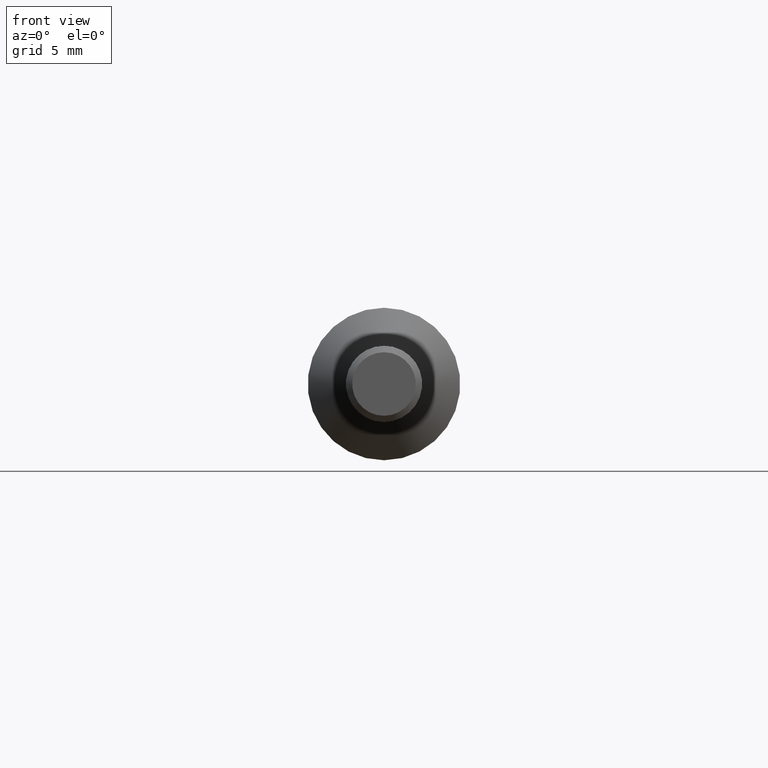
[diagram: clean part render]
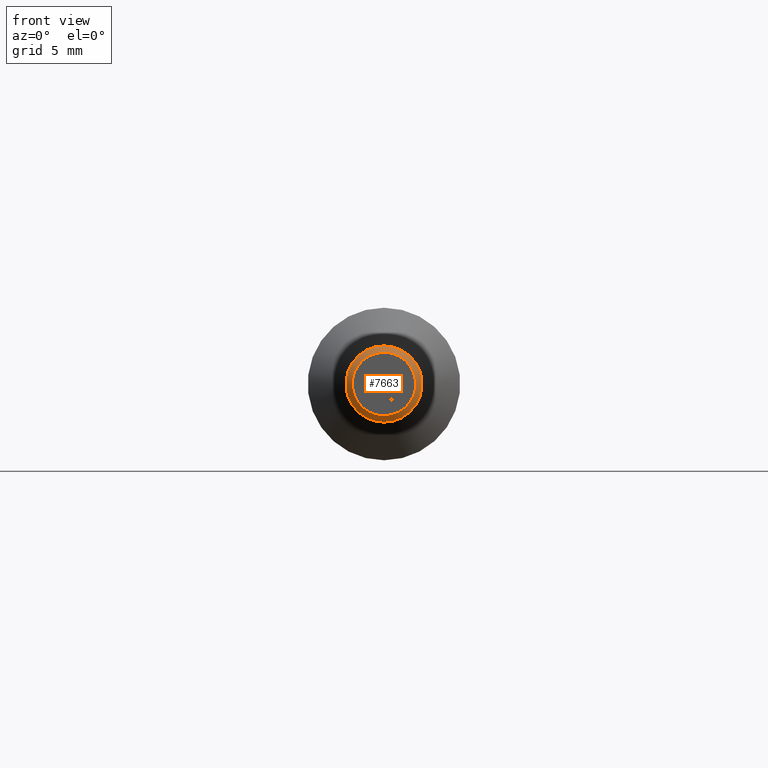
[diagram: same view with one face highlighted and labeled with its STEP entity id]
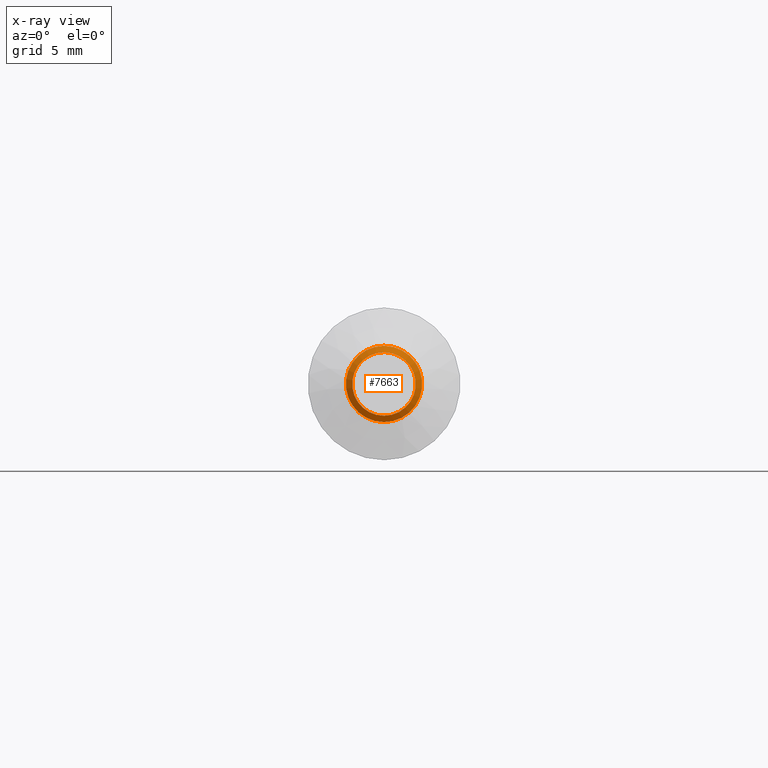
[diagram: x-ray of the same camera — body ghosted, the highlighted face saturated]
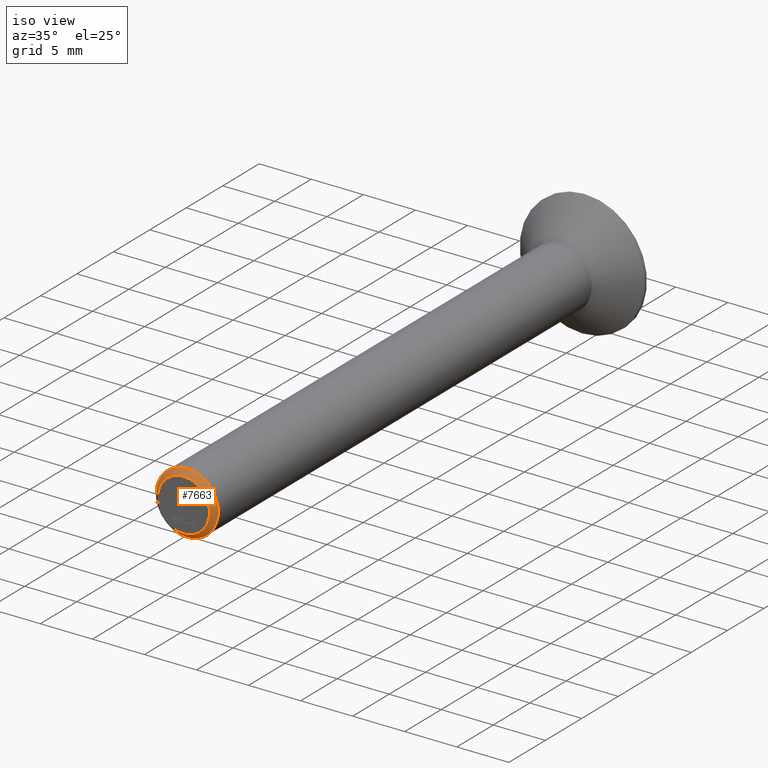
[diagram: same view with one face highlighted and labeled with its STEP entity id]
A machine part, front view. The second image highlights one B-rep face of the part: STEP entity #7663.
The next image is the same camera in x-ray: the body ghosted, the highlighted face saturated — about 0% of this face is hidden behind the body in this view.
A second angle (iso view) of the same face is appended — the face is thin or edge-on in the first view.
In plain terms, the highlighted conical surface has half-angle 45 deg.
Its self-contained STEP definition (entity closure, byte-faithful):
#876 = VERTEX_POINT ( 'NONE', #3048 ) ;
#1638 = DIRECTION ( 'NONE',  ( -0.000000000000000000, -1.000000000000000000, -0.000000000000000000 ) ) ;
#2100 = EDGE_LOOP ( 'NONE', ( #9546 ) ) ;
#3048 = CARTESIAN_POINT ( 'NONE',  ( 0.000000000000000000, -26.99999999999999645, -3.000000000000000888 ) ) ;
#3762 = FACE_BOUND ( 'NONE', #9143, .T. ) ;
#4056 = CIRCLE ( 'NONE', #9854, 3.000000000000000888 ) ;
#4225 = DIRECTION ( 'NONE',  ( 0.000000000000000000, 0.000000000000000000, -1.000000000000000000 ) ) ;
#5116 = VERTEX_POINT ( 'NONE', #7774 ) ;
#6490 = CIRCLE ( 'NONE', #7896, 2.499999999999995115 ) ;
#6547 = FACE_OUTER_BOUND ( 'NONE', #2100, .T. ) ;
#7456 = ORIENTED_EDGE ( 'NONE', *, *, #12560, .F. ) ;
#7663 = ADVANCED_FACE ( 'NONE', ( #6547, #3762 ), #8600, .T. ) ;
#7715 = CARTESIAN_POINT ( 'NONE',  ( 0.000000000000000000, -27.50000000000000000, 0.000000000000000000 ) ) ;
#7774 = CARTESIAN_POINT ( 'NONE',  ( 0.000000000000000000, -27.50000000000000000, -2.499999999999995115 ) ) ;
#7877 = CARTESIAN_POINT ( 'NONE',  ( 0.000000000000000000, -27.50000000000000000, 0.000000000000000000 ) ) ;
#7896 = AXIS2_PLACEMENT_3D ( 'NONE', #7715, #1638, #4225 ) ;
#8539 = DIRECTION ( 'NONE',  ( 0.000000000000000000, 1.000000000000000000, 0.000000000000000000 ) ) ;
#8600 = CONICAL_SURFACE ( 'NONE', #9548, 2.499999999999995115, 0.7853981633974500554 ) ;
#8810 = DIRECTION ( 'NONE',  ( 0.000000000000000000, 1.000000000000000000, 0.000000000000000000 ) ) ;
#9143 = EDGE_LOOP ( 'NONE', ( #7456 ) ) ;
#9546 = ORIENTED_EDGE ( 'NONE', *, *, #11665, .F. ) ;
#9548 = AXIS2_PLACEMENT_3D ( 'NONE', #7877, #8810, #10327 ) ;
#9854 = AXIS2_PLACEMENT_3D ( 'NONE', #13357, #8539, #13212 ) ;
#10327 = DIRECTION ( 'NONE',  ( 0.000000000000000000, 0.000000000000000000, 1.000000000000000000 ) ) ;
#11665 = EDGE_CURVE ( 'NONE', #876, #876, #4056, .T. ) ;
#12560 = EDGE_CURVE ( 'NONE', #5116, #5116, #6490, .T. ) ;
#13212 = DIRECTION ( 'NONE',  ( 0.000000000000000000, 0.000000000000000000, -1.000000000000000000 ) ) ;
#13357 = CARTESIAN_POINT ( 'NONE',  ( 0.000000000000000000, -26.99999999999999645, 0.000000000000000000 ) ) ;